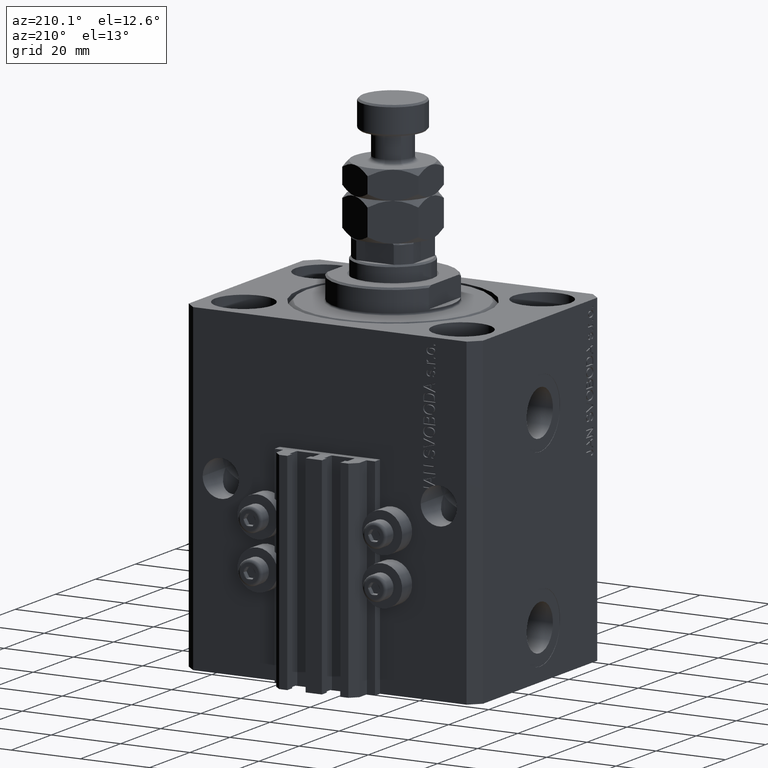
[diagram: clean part render]
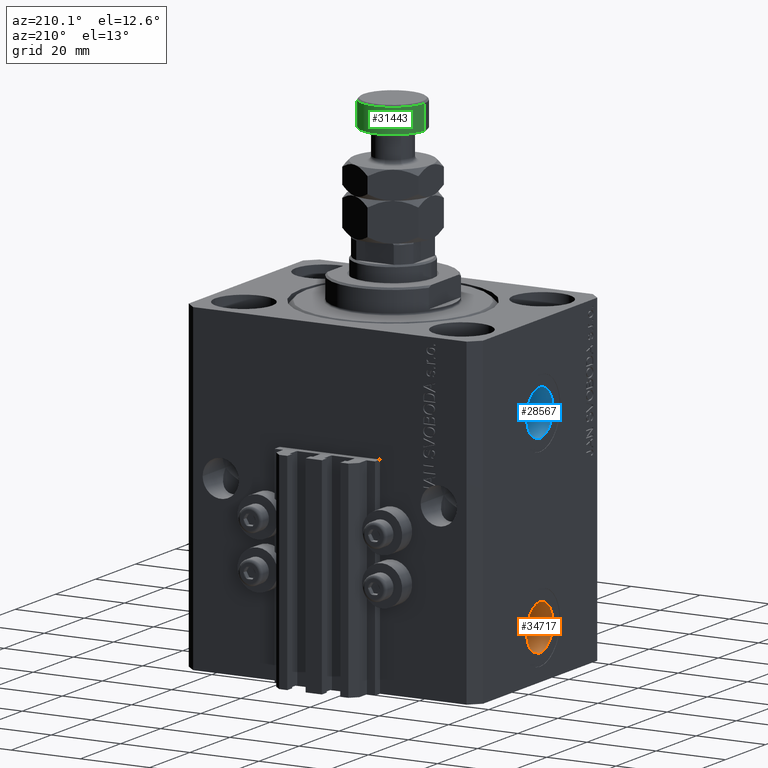
[diagram: same view with three faces highlighted in distinct colors, each labeled with its STEP entity id]
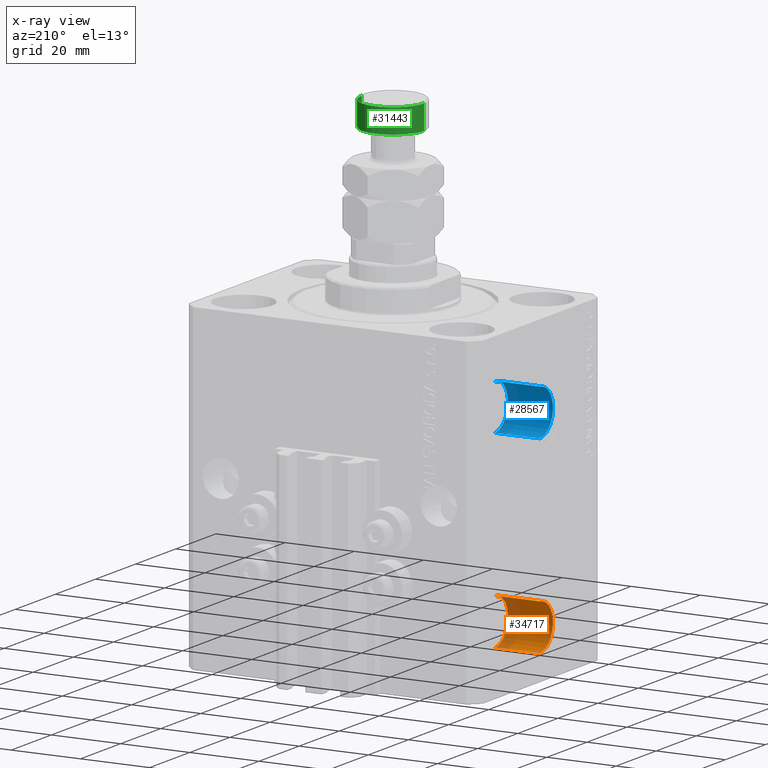
[diagram: x-ray of the same camera — body ghosted, the three highlighted faces saturated]
A machine part, auxiliary view with three faces highlighted in distinct colors.
The next image is the same camera in x-ray (body ghosted, the three faces saturated) — at least one of them is partly hidden behind the body in this view.
Their STEP definitions:

[orange] entity #34717 — the highlighted cylindrical surface (edge-blend (fillet) strip) has radius 6.58 mm, axis along (-1, -0, -0).
#1163 = EDGE_CURVE ( 'NONE', #1718, #14060, #7467, .T. ) ;
#1718 = VERTEX_POINT ( 'NONE', #14095 ) ;
#3574 = CIRCLE ( 'NONE', #36972, 6.580000000000002736 ) ;
#4674 = EDGE_CURVE ( 'NONE', #21082, #14060, #3574, .T. ) ;
#4973 = DIRECTION ( 'NONE',  ( 0.000000000000000000, 0.000000000000000000, 1.000000000000000000 ) ) ;
#7467 = LINE ( 'NONE', #13963, #34449 ) ;
#8387 = EDGE_CURVE ( 'NONE', #37590, #21082, #15315, .T. ) ;
#10969 = DIRECTION ( 'NONE',  ( -1.000000000000000000, -0.000000000000000000, -0.000000000000000000 ) ) ;
#11237 = CARTESIAN_POINT ( 'NONE',  ( -42.39999999999999858, -8.868892119425131862E-15, -85.57999999999999829 ) ) ;
#11416 = DIRECTION ( 'NONE',  ( 0.000000000000000000, 0.000000000000000000, 1.000000000000000000 ) ) ;
#12810 = DIRECTION ( 'NONE',  ( -1.000000000000000000, 0.000000000000000000, 0.000000000000000000 ) ) ;
#13139 = EDGE_LOOP ( 'NONE', ( #32272, #37987, #47771, #26726 ) ) ;
#13963 = CARTESIAN_POINT ( 'NONE',  ( -29.40000000000000213, -9.674709713264090904E-15, -72.42000000000000171 ) ) ;
#14060 = VERTEX_POINT ( 'NONE', #14407 ) ;
#14095 = CARTESIAN_POINT ( 'NONE',  ( -29.40000000000000213, -9.674709713264090904E-15, -72.42000000000000171 ) ) ;
#14407 = CARTESIAN_POINT ( 'NONE',  ( -42.39999999999999858, -9.674709713264090904E-15, -72.42000000000000171 ) ) ;
#15315 = LINE ( 'NONE', #26279, #32314 ) ;
#18895 = CARTESIAN_POINT ( 'NONE',  ( -29.40000000000000213, -9.674709713264090904E-15, -79.00000000000000000 ) ) ;
#19940 = FACE_OUTER_BOUND ( 'NONE', #13139, .T. ) ;
#20172 = CYLINDRICAL_SURFACE ( 'NONE', #32440, 6.580000000000002736 ) ;
#21082 = VERTEX_POINT ( 'NONE', #11237 ) ;
#21902 = DIRECTION ( 'NONE',  ( -1.000000000000000000, 0.000000000000000000, 0.000000000000000000 ) ) ;
#25787 = DIRECTION ( 'NONE',  ( -1.000000000000000000, -0.000000000000000000, -0.000000000000000000 ) ) ;
#26279 = CARTESIAN_POINT ( 'NONE',  ( -29.40000000000000213, -8.868892119425131862E-15, -85.57999999999999829 ) ) ;
#26515 = EDGE_CURVE ( 'NONE', #37590, #1718, #48175, .T. ) ;
#26726 = ORIENTED_EDGE ( 'NONE', *, *, #1163, .F. ) ;
#32272 = ORIENTED_EDGE ( 'NONE', *, *, #26515, .F. ) ;
#32314 = VECTOR ( 'NONE', #25787, 1000.000000000000000 ) ;
#32440 = AXIS2_PLACEMENT_3D ( 'NONE', #34656, #42846, #4973 ) ;
#33494 = CARTESIAN_POINT ( 'NONE',  ( -29.40000000000000213, -8.868892119425131862E-15, -85.57999999999999829 ) ) ;
#34449 = VECTOR ( 'NONE', #10969, 1000.000000000000000 ) ;
#34656 = CARTESIAN_POINT ( 'NONE',  ( -29.40000000000000213, -9.674709713264090904E-15, -79.00000000000000000 ) ) ;
#34659 = AXIS2_PLACEMENT_3D ( 'NONE', #18895, #21902, #11416 ) ;
#34717 = ADVANCED_FACE ( 'NONE', ( #19940 ), #20172, .F. ) ;
#36972 = AXIS2_PLACEMENT_3D ( 'NONE', #46910, #12810, #44151 ) ;
#37590 = VERTEX_POINT ( 'NONE', #33494 ) ;
#37987 = ORIENTED_EDGE ( 'NONE', *, *, #8387, .T. ) ;
#42846 = DIRECTION ( 'NONE',  ( -1.000000000000000000, -0.000000000000000000, -0.000000000000000000 ) ) ;
#44151 = DIRECTION ( 'NONE',  ( 0.000000000000000000, 0.000000000000000000, 1.000000000000000000 ) ) ;
#46910 = CARTESIAN_POINT ( 'NONE',  ( -42.39999999999999858, -9.674709713264090904E-15, -79.00000000000000000 ) ) ;
#47771 = ORIENTED_EDGE ( 'NONE', *, *, #4674, .T. ) ;
#48175 = CIRCLE ( 'NONE', #34659, 6.580000000000002736 ) ;

[blue] entity #28567 — the highlighted cylindrical surface (edge-blend (fillet) strip) has radius 6.58 mm, axis along (-1, -0, -0).
#1105 = CARTESIAN_POINT ( 'NONE',  ( -29.40000000000000213, -3.469446951953614189E-15, -17.42000000000000171 ) ) ;
#1368 = AXIS2_PLACEMENT_3D ( 'NONE', #1816, #36933, #13279 ) ;
#1816 = CARTESIAN_POINT ( 'NONE',  ( -29.40000000000000213, -3.469446951953614189E-15, -24.00000000000000000 ) ) ;
#1908 = ORIENTED_EDGE ( 'NONE', *, *, #4835, .T. ) ;
#2897 = DIRECTION ( 'NONE',  ( -1.000000000000000000, -0.000000000000000000, -0.000000000000000000 ) ) ;
#3306 = DIRECTION ( 'NONE',  ( -1.000000000000000000, -0.000000000000000000, -0.000000000000000000 ) ) ;
#3349 = CARTESIAN_POINT ( 'NONE',  ( -42.39999999999999858, -3.469446951953614189E-15, -17.42000000000000171 ) ) ;
#3435 = VERTEX_POINT ( 'NONE', #39264 ) ;
#4166 = CARTESIAN_POINT ( 'NONE',  ( -42.39999999999999858, -2.663629358114655936E-15, -30.57999999999999829 ) ) ;
#4835 = EDGE_CURVE ( 'NONE', #3435, #45084, #41184, .T. ) ;
#6397 = EDGE_LOOP ( 'NONE', ( #16937, #1908, #34795, #28378 ) ) ;
#6874 = CIRCLE ( 'NONE', #29142, 6.579999999999999183 ) ;
#11483 = FACE_OUTER_BOUND ( 'NONE', #6397, .T. ) ;
#13204 = VERTEX_POINT ( 'NONE', #3349 ) ;
#13279 = DIRECTION ( 'NONE',  ( 0.000000000000000000, 0.000000000000000000, 1.000000000000000000 ) ) ;
#13452 = EDGE_CURVE ( 'NONE', #3435, #35987, #42717, .T. ) ;
#14050 = AXIS2_PLACEMENT_3D ( 'NONE', #22954, #34404, #15480 ) ;
#15480 = DIRECTION ( 'NONE',  ( 0.000000000000000000, 0.000000000000000000, 1.000000000000000000 ) ) ;
#15933 = VECTOR ( 'NONE', #2897, 1000.000000000000000 ) ;
#16937 = ORIENTED_EDGE ( 'NONE', *, *, #13452, .F. ) ;
#21860 = VECTOR ( 'NONE', #3306, 1000.000000000000000 ) ;
#22954 = CARTESIAN_POINT ( 'NONE',  ( -29.40000000000000213, -3.469446951953614189E-15, -24.00000000000000000 ) ) ;
#23051 = LINE ( 'NONE', #37752, #15933 ) ;
#26681 = CYLINDRICAL_SURFACE ( 'NONE', #14050, 6.579999999999999183 ) ;
#28378 = ORIENTED_EDGE ( 'NONE', *, *, #40441, .F. ) ;
#28567 = ADVANCED_FACE ( 'NONE', ( #11483 ), #26681, .F. ) ;
#29142 = AXIS2_PLACEMENT_3D ( 'NONE', #31096, #31332, #46985 ) ;
#31096 = CARTESIAN_POINT ( 'NONE',  ( -42.39999999999999858, -3.469446951953614189E-15, -24.00000000000000000 ) ) ;
#31332 = DIRECTION ( 'NONE',  ( -1.000000000000000000, 0.000000000000000000, 0.000000000000000000 ) ) ;
#34197 = CARTESIAN_POINT ( 'NONE',  ( -29.40000000000000213, -2.663629358114655936E-15, -30.57999999999999829 ) ) ;
#34404 = DIRECTION ( 'NONE',  ( -1.000000000000000000, -0.000000000000000000, -0.000000000000000000 ) ) ;
#34795 = ORIENTED_EDGE ( 'NONE', *, *, #46118, .T. ) ;
#35987 = VERTEX_POINT ( 'NONE', #1105 ) ;
#36933 = DIRECTION ( 'NONE',  ( -1.000000000000000000, 0.000000000000000000, 0.000000000000000000 ) ) ;
#37752 = CARTESIAN_POINT ( 'NONE',  ( -29.40000000000000213, -3.469446951953614189E-15, -17.42000000000000171 ) ) ;
#39264 = CARTESIAN_POINT ( 'NONE',  ( -29.40000000000000213, -2.663629358114655936E-15, -30.57999999999999829 ) ) ;
#40441 = EDGE_CURVE ( 'NONE', #35987, #13204, #23051, .T. ) ;
#41184 = LINE ( 'NONE', #34197, #21860 ) ;
#42717 = CIRCLE ( 'NONE', #1368, 6.579999999999999183 ) ;
#45084 = VERTEX_POINT ( 'NONE', #4166 ) ;
#46118 = EDGE_CURVE ( 'NONE', #45084, #13204, #6874, .T. ) ;
#46985 = DIRECTION ( 'NONE',  ( 0.000000000000000000, 0.000000000000000000, 1.000000000000000000 ) ) ;

[green] entity #31443 — the highlighted cylindrical surface (edge-blend (fillet) strip) has radius 9 mm, axis along (-0, -0, -1).
#1188 = EDGE_LOOP ( 'NONE', ( #2411, #7806, #29449, #23309 ) ) ;
#1271 = CARTESIAN_POINT ( 'NONE',  ( 9.000000000000000000, 1.102182119232617714E-15, 27.50000000000000000 ) ) ;
#2326 = LINE ( 'NONE', #28725, #6924 ) ;
#2411 = ORIENTED_EDGE ( 'NONE', *, *, #36267, .T. ) ;
#3689 = CARTESIAN_POINT ( 'NONE',  ( 0.000000000000000000, 0.000000000000000000, 34.49999999999999289 ) ) ;
#4038 = VERTEX_POINT ( 'NONE', #1271 ) ;
#4286 = DIRECTION ( 'NONE',  ( 1.000000000000000000, 0.000000000000000000, 0.000000000000000000 ) ) ;
#4928 = EDGE_CURVE ( 'NONE', #4038, #42712, #17082, .T. ) ;
#6305 = DIRECTION ( 'NONE',  ( -0.000000000000000000, -0.000000000000000000, -1.000000000000000000 ) ) ;
#6924 = VECTOR ( 'NONE', #6305, 1000.000000000000000 ) ;
#7806 = ORIENTED_EDGE ( 'NONE', *, *, #35887, .T. ) ;
#8028 = CARTESIAN_POINT ( 'NONE',  ( 0.000000000000000000, 0.000000000000000000, 35.00000000000000000 ) ) ;
#8762 = CYLINDRICAL_SURFACE ( 'NONE', #36425, 9.000000000000000000 ) ;
#10557 = CARTESIAN_POINT ( 'NONE',  ( 9.000000000000000000, 1.102182119232617714E-15, 34.49999999999999289 ) ) ;
#11404 = DIRECTION ( 'NONE',  ( 0.000000000000000000, 0.000000000000000000, -1.000000000000000000 ) ) ;
#12258 = CARTESIAN_POINT ( 'NONE',  ( 0.000000000000000000, 0.000000000000000000, 27.50000000000000000 ) ) ;
#13389 = EDGE_CURVE ( 'NONE', #41743, #42712, #2326, .T. ) ;
#17082 = CIRCLE ( 'NONE', #25845, 9.000000000000000000 ) ;
#20707 = VERTEX_POINT ( 'NONE', #10557 ) ;
#22975 = CIRCLE ( 'NONE', #43608, 9.000000000000000000 ) ;
#23309 = ORIENTED_EDGE ( 'NONE', *, *, #13389, .F. ) ;
#23962 = DIRECTION ( 'NONE',  ( -0.000000000000000000, -0.000000000000000000, -1.000000000000000000 ) ) ;
#25845 = AXIS2_PLACEMENT_3D ( 'NONE', #12258, #46129, #4286 ) ;
#28725 = CARTESIAN_POINT ( 'NONE',  ( -9.000000000000000000, 0.000000000000000000, 35.00000000000000000 ) ) ;
#29449 = ORIENTED_EDGE ( 'NONE', *, *, #4928, .T. ) ;
#31443 = ADVANCED_FACE ( 'NONE', ( #38915 ), #8762, .T. ) ;
#31679 = DIRECTION ( 'NONE',  ( -1.000000000000000000, 0.000000000000000000, 0.000000000000000000 ) ) ;
#35887 = EDGE_CURVE ( 'NONE', #20707, #4038, #44005, .T. ) ;
#36062 = DIRECTION ( 'NONE',  ( -0.000000000000000000, -0.000000000000000000, -1.000000000000000000 ) ) ;
#36267 = EDGE_CURVE ( 'NONE', #41743, #20707, #22975, .T. ) ;
#36425 = AXIS2_PLACEMENT_3D ( 'NONE', #8028, #23962, #31679 ) ;
#37824 = DIRECTION ( 'NONE',  ( 1.000000000000000000, 0.000000000000000000, 0.000000000000000000 ) ) ;
#38056 = VECTOR ( 'NONE', #36062, 1000.000000000000000 ) ;
#38915 = FACE_OUTER_BOUND ( 'NONE', #1188, .T. ) ;
#41743 = VERTEX_POINT ( 'NONE', #46978 ) ;
#42712 = VERTEX_POINT ( 'NONE', #47235 ) ;
#43608 = AXIS2_PLACEMENT_3D ( 'NONE', #3689, #11404, #37824 ) ;
#44005 = LINE ( 'NONE', #47756, #38056 ) ;
#46129 = DIRECTION ( 'NONE',  ( -0.000000000000000000, -0.000000000000000000, 1.000000000000000000 ) ) ;
#46978 = CARTESIAN_POINT ( 'NONE',  ( -9.000000000000000000, 0.000000000000000000, 34.49999999999999289 ) ) ;
#47235 = CARTESIAN_POINT ( 'NONE',  ( -9.000000000000000000, 0.000000000000000000, 27.50000000000000000 ) ) ;
#47756 = CARTESIAN_POINT ( 'NONE',  ( 9.000000000000000000, 1.102182119232617714E-15, 35.00000000000000000 ) ) ;